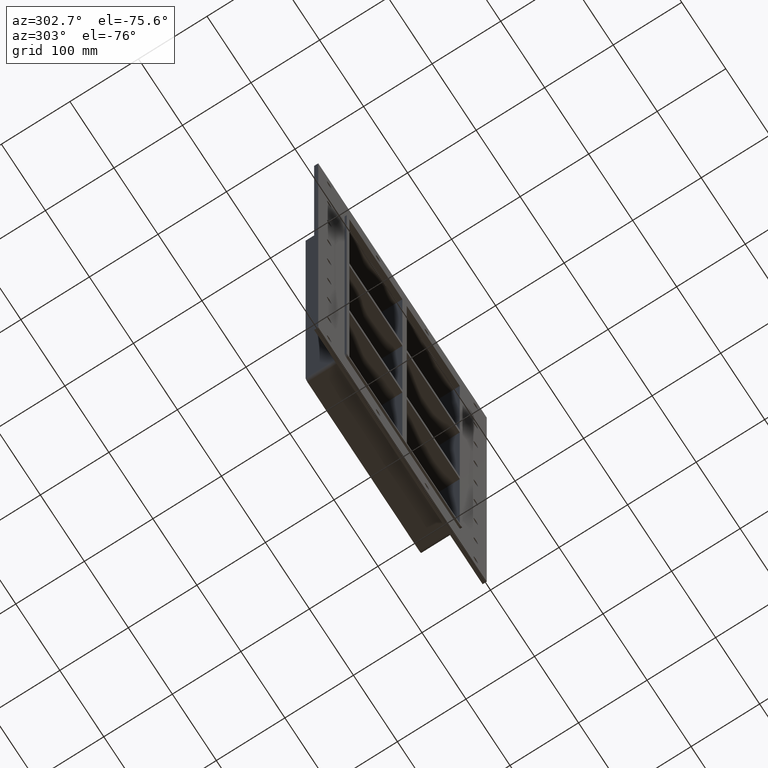
[diagram: clean part render]
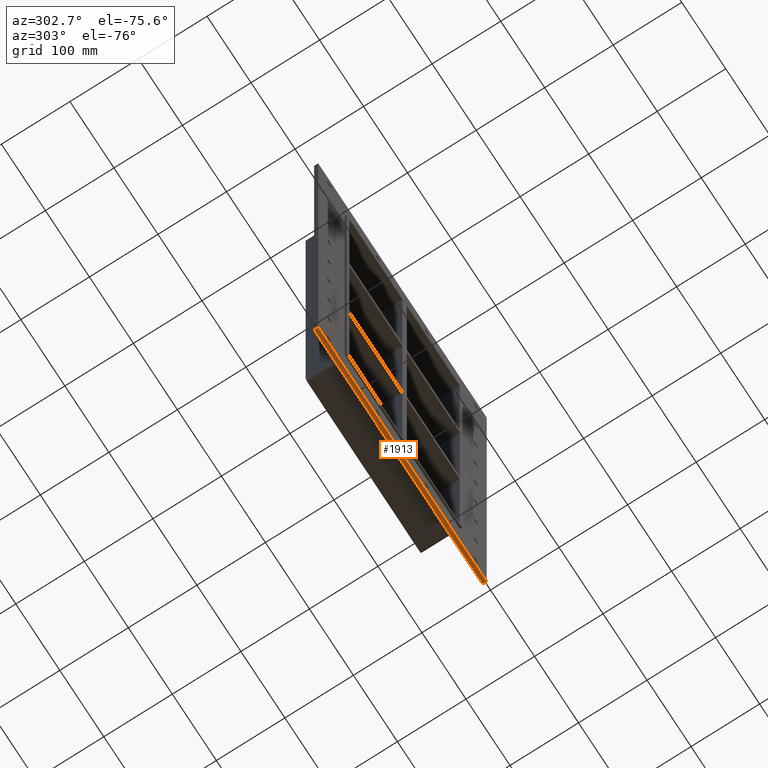
[diagram: same view with one face highlighted and labeled with its STEP entity id]
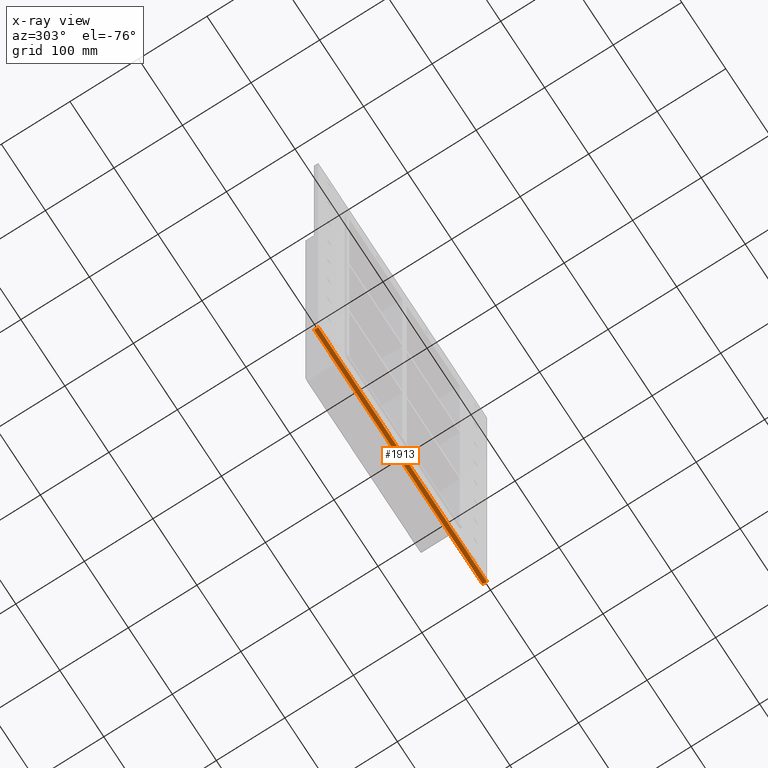
[diagram: x-ray of the same camera — body ghosted, the highlighted face saturated]
A machine part, auxiliary view. The second image highlights one B-rep face of the part: STEP entity #1913.
The next image is the same camera in x-ray: the body ghosted, the highlighted face saturated — about 0% of this face is hidden behind the body in this view.
In plain terms, the highlighted planar face has unit normal (0, 0, -1).
Its self-contained STEP definition (entity closure, byte-faithful):
#1538=CARTESIAN_POINT('',(191.5,6.000000000000001,-405.00000000000006));
#1539=VERTEX_POINT('',#1538);
#1546=CARTESIAN_POINT('',(-191.5,6.000000000000001,-405.00000000000006));
#1547=VERTEX_POINT('',#1546);
#1548=CARTESIAN_POINT('',(191.5,6.000000000000001,-405.00000000000006));
#1549=DIRECTION('',(-1.0,0.0,0.0));
#1550=VECTOR('',#1549,383.0);
#1551=LINE('',#1548,#1550);
#1552=EDGE_CURVE('',#1539,#1547,#1551,.T.);
#1714=CARTESIAN_POINT('',(-191.5,0.0,-405.00000000000006));
#1715=VERTEX_POINT('',#1714);
#1722=CARTESIAN_POINT('',(191.5,0.0,-405.00000000000006));
#1723=VERTEX_POINT('',#1722);
#1724=CARTESIAN_POINT('',(191.5,0.0,-405.00000000000006));
#1725=DIRECTION('',(-1.0,0.0,0.0));
#1726=VECTOR('',#1725,383.0);
#1727=LINE('',#1724,#1726);
#1728=EDGE_CURVE('',#1723,#1715,#1727,.T.);
#1888=CARTESIAN_POINT('',(-191.5,0.0,-405.00000000000006));
#1889=DIRECTION('',(0.0,1.0,0.0));
#1890=VECTOR('',#1889,6.000000000000001);
#1891=LINE('',#1888,#1890);
#1892=EDGE_CURVE('',#1715,#1547,#1891,.T.);
#1897=CARTESIAN_POINT('',(191.5,0.0,-405.00000000000006));
#1898=DIRECTION('',(0.0,0.0,-1.0));
#1899=DIRECTION('',(-1.0,0.0,0.0));
#1900=AXIS2_PLACEMENT_3D('',#1897,#1898,#1899);
#1901=PLANE('',#1900);
#1902=ORIENTED_EDGE('',*,*,#1728,.T.);
#1903=ORIENTED_EDGE('',*,*,#1892,.T.);
#1904=ORIENTED_EDGE('',*,*,#1552,.F.);
#1905=CARTESIAN_POINT('',(191.5,0.0,-405.00000000000006));
#1906=DIRECTION('',(0.0,1.0,0.0));
#1907=VECTOR('',#1906,6.000000000000001);
#1908=LINE('',#1905,#1907);
#1909=EDGE_CURVE('',#1723,#1539,#1908,.T.);
#1910=ORIENTED_EDGE('',*,*,#1909,.F.);
#1911=EDGE_LOOP('',(#1902,#1903,#1904,#1910));
#1912=FACE_OUTER_BOUND('',#1911,.T.);
#1913=ADVANCED_FACE('',(#1912),#1901,.T.);